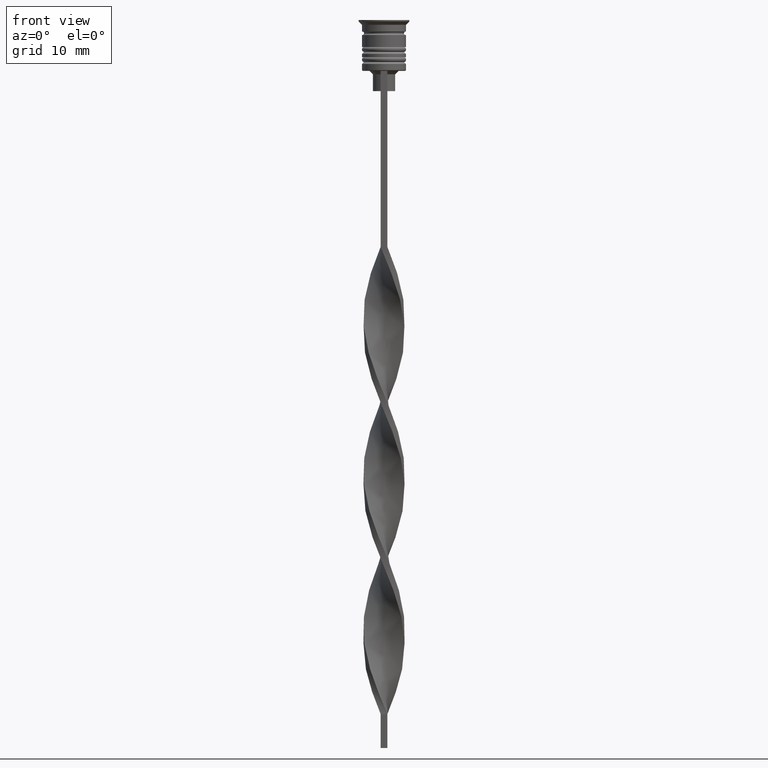
[diagram: clean part render]
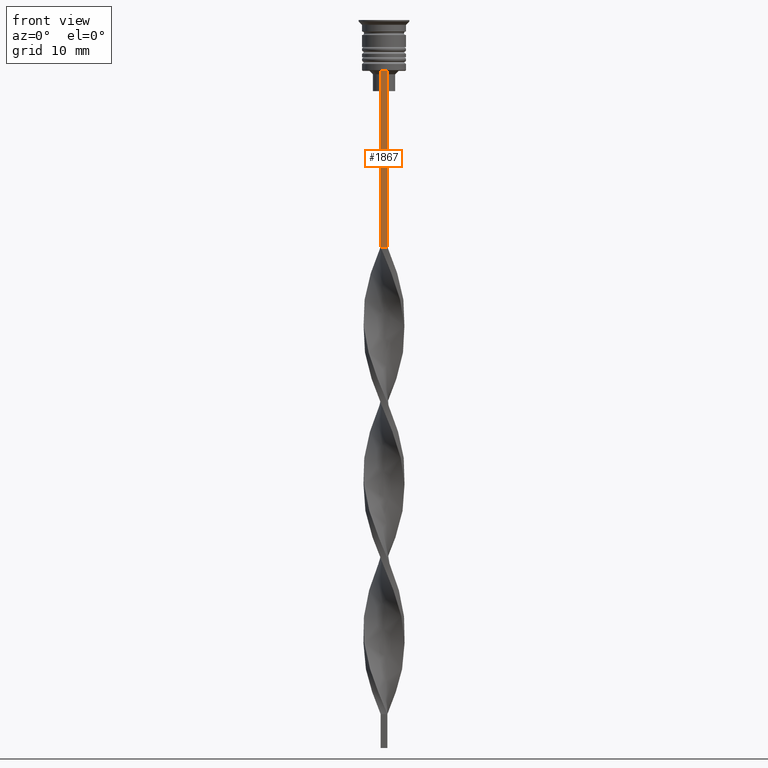
[diagram: same view with one face highlighted and labeled with its STEP entity id]
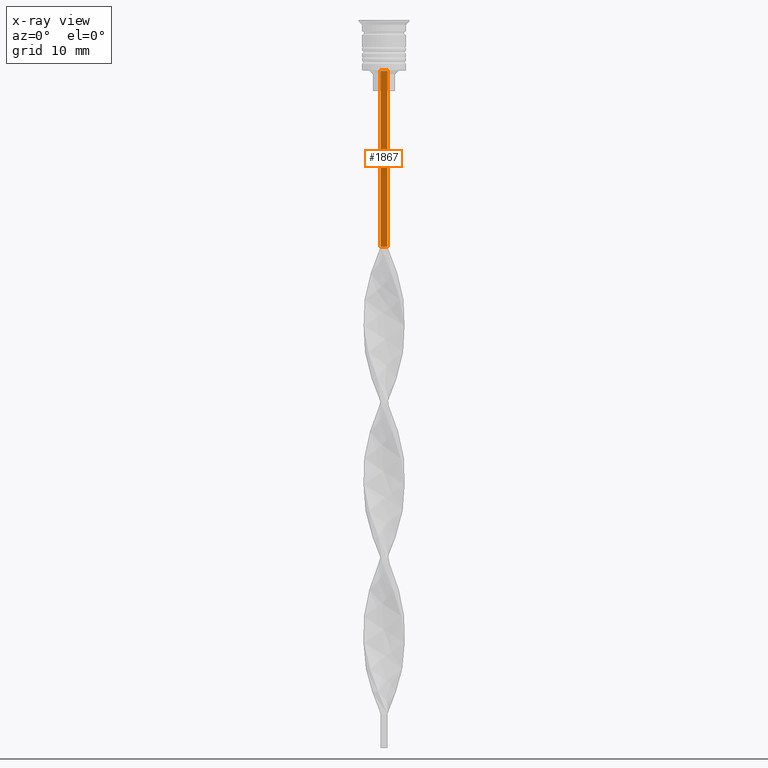
[diagram: x-ray of the same camera — body ghosted, the highlighted face saturated]
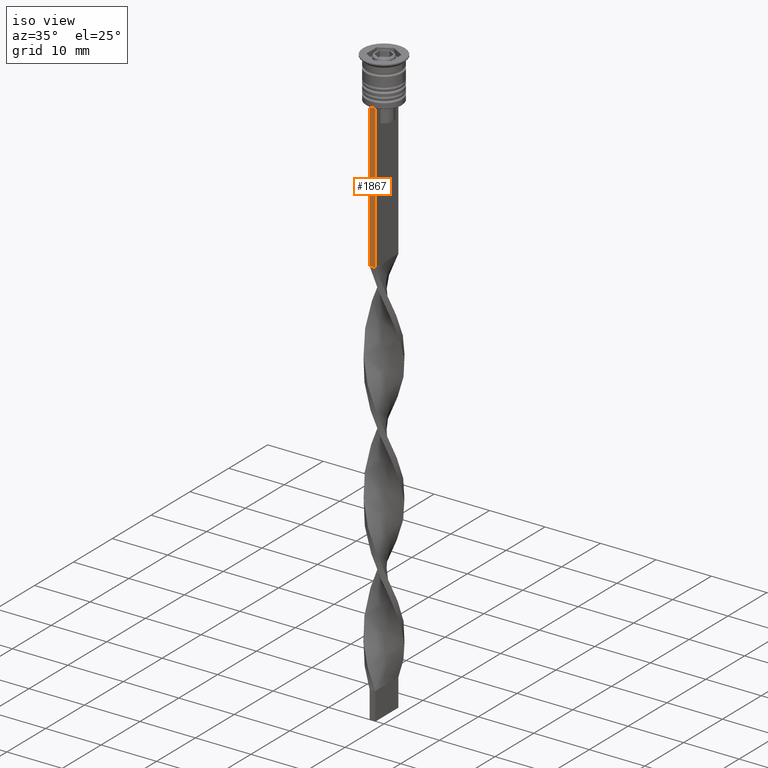
[diagram: same view with one face highlighted and labeled with its STEP entity id]
A machine part, front view. The second image highlights one B-rep face of the part: STEP entity #1867.
The next image is the same camera in x-ray: the body ghosted, the highlighted face saturated — about 0% of this face is hidden behind the body in this view.
A second angle (iso view) of the same face is appended — the face is thin or edge-on in the first view.
In plain terms, the highlighted planar face has unit normal (0, -1, -0).
Its self-contained STEP definition (entity closure, byte-faithful):
#165 = LINE ( 'NONE', #2968, #2501 ) ;
#179 = DIRECTION ( 'NONE',  ( 0.000000000000000000, -1.000000000000000000, -0.000000000000000000 ) ) ;
#259 = VECTOR ( 'NONE', #1816, 1000.000000000000000 ) ;
#268 = CARTESIAN_POINT ( 'NONE',  ( -0.5000000000000001110, -3.000000000000000000, -1.417237469701779329 ) ) ;
#376 = VECTOR ( 'NONE', #824, 1000.000000000000000 ) ;
#428 = CARTESIAN_POINT ( 'NONE',  ( 0.4999999999999998890, -3.000000000000000000, -1.417237469701779329 ) ) ;
#603 = VECTOR ( 'NONE', #1013, 1000.000000000000000 ) ;
#770 = EDGE_CURVE ( 'NONE', #2634, #1084, #1566, .T. ) ;
#808 = VERTEX_POINT ( 'NONE', #1616 ) ;
#824 = DIRECTION ( 'NONE',  ( 0.000000000000000000, 0.000000000000000000, -1.000000000000000000 ) ) ;
#978 = DIRECTION ( 'NONE',  ( 0.000000000000000000, 0.000000000000000000, -1.000000000000000000 ) ) ;
#997 = EDGE_CURVE ( 'NONE', #2634, #808, #165, .T. ) ;
#1013 = DIRECTION ( 'NONE',  ( -1.000000000000000000, 0.000000000000000000, 0.000000000000000000 ) ) ;
#1084 = VERTEX_POINT ( 'NONE', #1398 ) ;
#1331 = EDGE_LOOP ( 'NONE', ( #3154, #2312, #1874, #1408 ) ) ;
#1398 = CARTESIAN_POINT ( 'NONE',  ( -0.5000000000000001110, -3.000000000000000000, -33.50000000000000000 ) ) ;
#1408 = ORIENTED_EDGE ( 'NONE', *, *, #1987, .F. ) ;
#1459 = DIRECTION ( 'NONE',  ( 1.000000000000000000, 0.000000000000000000, 0.000000000000000000 ) ) ;
#1566 = LINE ( 'NONE', #268, #259 ) ;
#1616 = CARTESIAN_POINT ( 'NONE',  ( 0.4999999999999998890, -3.000000000000000000, -7.500000000000000000 ) ) ;
#1816 = DIRECTION ( 'NONE',  ( 0.000000000000000000, 0.000000000000000000, -1.000000000000000000 ) ) ;
#1867 = ADVANCED_FACE ( 'NONE', ( #2800 ), #2236, .T. ) ;
#1874 = ORIENTED_EDGE ( 'NONE', *, *, #2865, .F. ) ;
#1888 = CARTESIAN_POINT ( 'NONE',  ( 0.4999999999999998890, -3.000000000000000000, -1.417237469701779329 ) ) ;
#1987 = EDGE_CURVE ( 'NONE', #808, #3226, #2408, .T. ) ;
#2236 = PLANE ( 'NONE',  #3202 ) ;
#2312 = ORIENTED_EDGE ( 'NONE', *, *, #770, .T. ) ;
#2408 = LINE ( 'NONE', #1888, #376 ) ;
#2501 = VECTOR ( 'NONE', #1459, 1000.000000000000000 ) ;
#2634 = VERTEX_POINT ( 'NONE', #2646 ) ;
#2646 = CARTESIAN_POINT ( 'NONE',  ( -0.5000000000000001110, -3.000000000000000000, -7.500000000000000000 ) ) ;
#2800 = FACE_OUTER_BOUND ( 'NONE', #1331, .T. ) ;
#2865 = EDGE_CURVE ( 'NONE', #3226, #1084, #3082, .T. ) ;
#2968 = CARTESIAN_POINT ( 'NONE',  ( 0.4999999999999998890, -3.000000000000000000, -7.500000000000000000 ) ) ;
#3041 = CARTESIAN_POINT ( 'NONE',  ( 0.4999999999999998890, -3.000000000000000000, -33.50000000000000000 ) ) ;
#3082 = LINE ( 'NONE', #3100, #603 ) ;
#3100 = CARTESIAN_POINT ( 'NONE',  ( 0.4999999999999998890, -3.000000000000000000, -33.50000000000000000 ) ) ;
#3154 = ORIENTED_EDGE ( 'NONE', *, *, #997, .F. ) ;
#3202 = AXIS2_PLACEMENT_3D ( 'NONE', #428, #179, #978 ) ;
#3226 = VERTEX_POINT ( 'NONE', #3041 ) ;